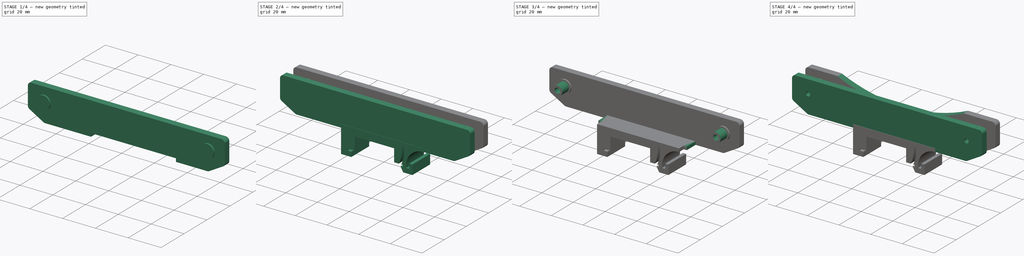
[diagram: build sequence overview — one tinted view per stage of 4, left to right]
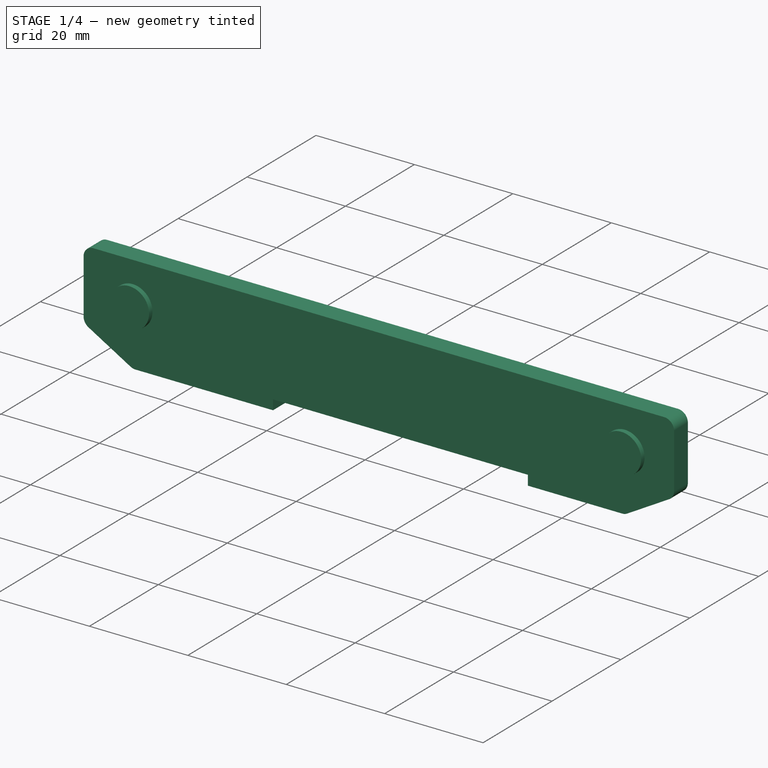
[diagram: stage 1 of 4 — iso view after this stage's code; geometry added in this stage tinted green]
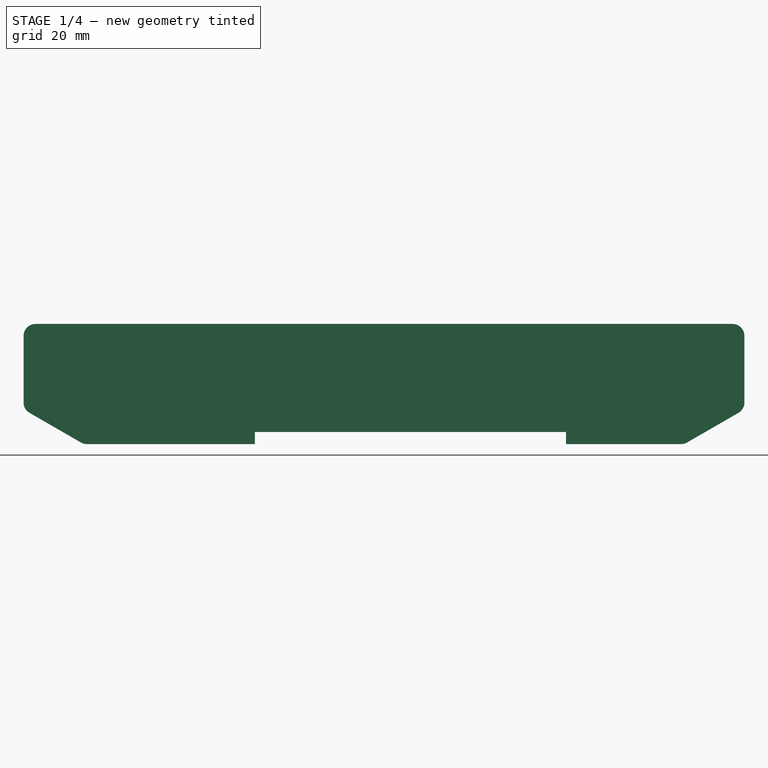
[diagram: stage 1 of 4 — front view after this stage's code; geometry added in this stage tinted green]
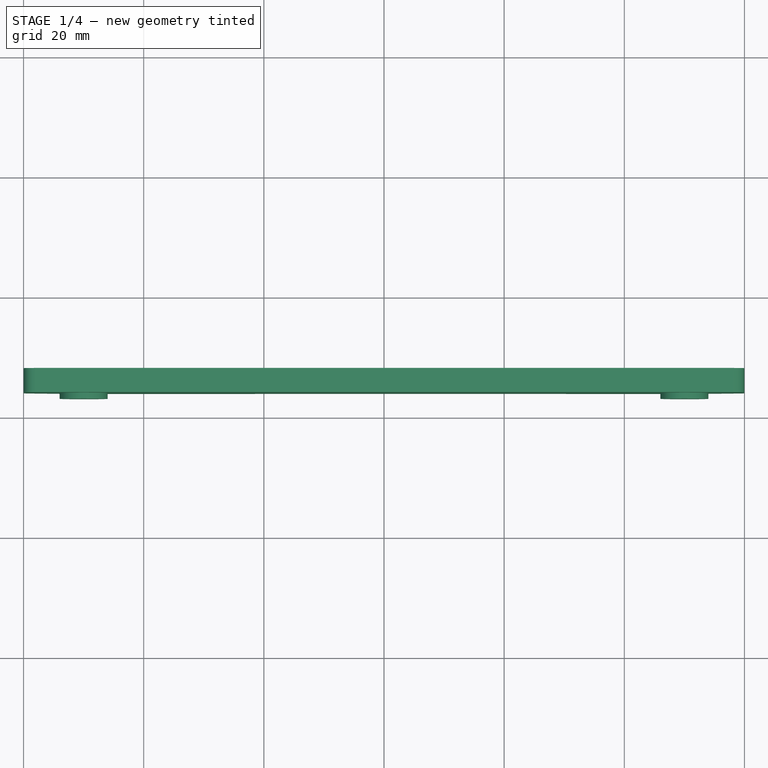
[diagram: stage 1 of 4 — top view after this stage's code; geometry added in this stage tinted green]
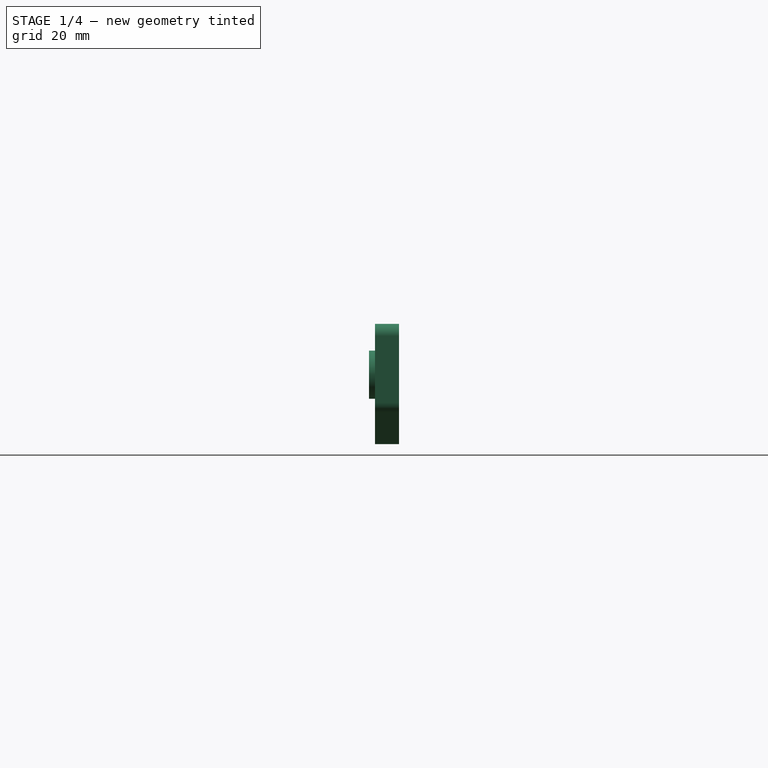
[diagram: stage 1 of 4 — right view after this stage's code; geometry added in this stage tinted green]
FCSTD DOCUMENT  (FreeCAD 0.19R24415 (Git))
Label: DIN-Spool-Holder-v3
License: All rights reserved
LicenseURL: http://en.wikipedia.org/wiki/All_rights_reserved
objects: Sketcher::SketchObject×11, PartDesign::Pad×8, PartDesign::ShapeBinder×4, PartDesign::Body×3, PartDesign::Fillet×2, PartDesign::Hole×2, PartDesign::Plane×1, PartDesign::Boolean×1, PartDesign::Pocket×1
note: 46 computed .brp shape members not serialized (recipe doc carries the construction recipe); baked Part::Feature solids carry a one-line shape summary decoded from their .brp

FEATURE [Sketcher::SketchObject] Sketch003  label="Sketch001"
  FullyConstrained = true
  MapMode = 5
  Placement = pos=(0,0,0) rot=(1,0,0;1.5708rad)
  sketch-geometry (29):
    g0: LineSegment StartX=-21.5 StartY=-3.38e-14 StartZ=0 EndX=-21.5 EndY=-15 EndZ=0
    g1: LineSegment StartX=-21.5 StartY=-15 StartZ=0 EndX=-15 EndY=-15 EndZ=0
    g2: LineSegment StartX=-15 StartY=-15 StartZ=0 EndX=-15 EndY=-12 EndZ=0
    g3: LineSegment StartX=-15 StartY=-12 StartZ=0 EndX=-17.5 EndY=-12 EndZ=0
    g4: LineSegment StartX=-17.5 StartY=-12 StartZ=0 EndX=-17.5 EndY=-10.8 EndZ=0
    g5: LineSegment StartX=-17.5 StartY=-10.8 StartZ=0 EndX=-13 EndY=-10.8 EndZ=0
    g6: LineSegment StartX=-13 StartY=-10.8 StartZ=0 EndX=-13 EndY=-2.8 EndZ=0
    g7: LineSegment StartX=-13 StartY=-2.8 StartZ=0 EndX=12 EndY=-2.8 EndZ=0
    g8: LineSegment StartX=12 StartY=-2.8 StartZ=0 EndX=12 EndY=-10.8 EndZ=0
    g9: LineSegment StartX=12 StartY=-10.8 StartZ=0 EndX=14.826 EndY=-10.8 EndZ=0
    g10: LineSegment StartX=19.5 StartY=-12 StartZ=0 EndX=21.5 EndY=-12 EndZ=0
    g11: LineSegment StartX=21.5 StartY=-12 StartZ=0 EndX=21.5 EndY=-9 EndZ=0
    g12: LineSegment StartX=21.5 StartY=-9 StartZ=0 EndX=23.5 EndY=-9 EndZ=0
    g13: LineSegment StartX=23.5 StartY=-9 StartZ=0 EndX=23.5 EndY=-15 EndZ=0
    g14: LineSegment StartX=23.5 StartY=-15 StartZ=0 EndX=17.7321 EndY=-15 EndZ=0
    g15: LineSegment StartX=17.7321 StartY=-15 StartZ=0 EndX=16 EndY=-12 EndZ=0
    g16: LineSegment StartX=16 StartY=-12 StartZ=0 EndX=17.5 EndY=-12 EndZ=0
    g17: LineSegment StartX=17.5 StartY=-12 StartZ=0 EndX=17.5 EndY=-10.8 EndZ=0
    g18: LineSegment StartX=17.5 StartY=-10.8 StartZ=0 EndX=16.5 EndY=-10.8 EndZ=0
    g19: ArcOfCircle CenterX=-0.5 CenterY=-2.8 CenterZ=0 NormalX=0 NormalY=0 NormalZ=1 AngleXU=0 Radius=17.2883 StartAngle=5.8021 EndAngle=6.36644
    g20: ArcOfCircle CenterX=-0.5 CenterY=-2.8 CenterZ=0 NormalX=0 NormalY=0 NormalZ=1 AngleXU=0 Radius=18.7883 StartAngle=5.84334 EndAngle=6.36644
    g21: ArcOfCircle CenterX=17.4758 CenterY=-1.3 CenterZ=0 NormalX=0 NormalY=0 NormalZ=1 AngleXU=0 Radius=0.75 StartAngle=0.0832526 EndAngle=3.22485
    g22: LineSegment StartX=-21.5 StartY=-3.38e-14 StartZ=0 EndX=30.3 EndY=-3.38e-14 EndZ=0
    g23: LineSegment StartX=19.5 StartY=-12 StartZ=0 EndX=19.5 EndY=-10.8 EndZ=0
    g24: ArcOfCircle CenterX=30.3 CenterY=-10.8 CenterZ=0 NormalX=0 NormalY=0 NormalZ=1 AngleXU=0 Radius=10.8 StartAngle=1.5708 EndAngle=3.14159
    g25: GeomPoint X=0 Y=-10.8 Z=0
    g26: LineSegment StartX=-21.5 StartY=-3.38e-14 StartZ=0 EndX=-21.5 EndY=2 EndZ=0
    g27: LineSegment StartX=-21.5 StartY=2 StartZ=0 EndX=30.3 EndY=2 EndZ=0
    g28: LineSegment StartX=30.3 StartY=2 StartZ=0 EndX=30.3 EndY=-3.38e-14 EndZ=0
  constraints (84):
    c: Vertical(g0)
    c: Coincident(g0,g1)
    c: Horizontal(g1)
    c: Coincident(g1,g2)
    c: Vertical(g2)
    c: Coincident(g2,g3)
    c: Horizontal(g3)
    c: Coincident(g3,g4)
    c: Vertical(g4)
    c: Coincident(g4,g5)
    c: Horizontal(g5)
    c: Coincident(g5,g6)
    c: Vertical(g6)
    c: Coincident(g6,g7)
    c: Horizontal(g7)
    c: Coincident(g7,g8)
    c: Vertical(g8)
    c: Coincident(g8,g9)
    c: Horizontal(g9)
    c: Horizontal(g10)
    c: Coincident(g10,g11)
    c: Vertical(g11)
    c: Coincident(g11,g12)
    c: Horizontal(g12)
    c: Coincident(g12,g13)
    c: Vertical(g13)
    c: Coincident(g13,g14)
    c: Horizontal(g14)
    c: Coincident(g14,g15)
    c: Coincident(g15,g16)
    c: Horizontal(g16)
    c: Coincident(g16,g17)
    c: Vertical(g17)
    c: Coincident(g17,g18)
    c: Horizontal(g18)
    c: DistanceY(g2,g2) = 3
    c: DistanceX(g3,g3) = 2.5
    c: DistanceX(g0,g3) = 4
    c: Horizontal(g9,g18)
    c: DistanceY(g4,g4) = 1.2
    c: DistanceX(g5,g5) = 4.5
    c: DistanceY(g6,g6) = 8
    c: Horizontal(g14,g1)
    c: Horizontal(g15,g2)
    c: Equal(g17,g4)
    c: DistanceX(g12,g12) = 2
    c: DistanceY(g13,g13) = 6
    c: DistanceY(g11,g11) = 3
    c: Coincident(g19,g9)
    c: Coincident(g20,g19)
    c: Coincident(g20,g18)
    c: Tangent(g21,g19) = 1.5708
    c: Tangent(g21,g20) = -1.5708
    c: Radius(g21) = 0.75
    c: Symmetric(g6,g7,g19)
    c: DistanceX(g3,g16) = 35
    c: DistanceX(g18,g18) = 1
    c: DistanceX(g8,g17) = 5.5
    c: DistanceY(g0,g0) = 15
    c: DistanceX(g10,g10) = 2
    c: DistanceX(g16,g10) = 2
    c: DistanceX(g2,g15) = 31
    c: Angle(g15,g16) = 1.0472
    c: Horizontal(g22)
    c: Coincident(g22,g0)
    c: DistanceY(g7,g21) = 1.5
    c: Coincident(g23,g10)
    c: Vertical(g23)
    c: Tangent(g24,g23)
    c: Coincident(g24,g23)
    c: Horizontal(g23,g17)
    c: Symmetric(g4,g17,g25)
    c: Vertical(g25,g-1)
    c: Horizontal(g0,g-1)
    c: Tangent(g24,g22,g24) = 1.5708
    c: Coincident(g22,g24)
    c: Coincident(g0,g26)
    c: Vertical(g26)
    c: Coincident(g26,g27)
    c: Horizontal(g27)
    c: Coincident(g27,g28)
    c: Coincident(g28,g24)
    c: Vertical(g28)
    c: DistanceY(g26,g26) = 2
FEATURE [PartDesign::Pad] Pad  label="clip"
  Direction = (1,1,1)
  Length = 16
  Length2 = 100
  Midplane = true
  Placement = pos=(0,0,0) rot=(1,0,0;1.5708rad)
  Profile = -> Sketch003
  Refine = true
  Type = 0
FEATURE [PartDesign::ShapeBinder] ShapeBinder
  Placement = pos=(0,8,-3e-15) rot=(0,0,1;0rad)
  Support = -> [Pad]
  TraceSupport = false
FEATURE [PartDesign::Plane] DatumPlane
  Length = 60
  MapMode = 5
  Placement = pos=(0,8,-3e-15) rot=(1,0,0;1.5708rad)
  ResizeMode = 0
  Support = -> [ShapeBinder]
  Width = 60
FEATURE [Sketcher::SketchObject] Sketch
  ExternalGeometry = -> [ShapeBinder]
  FullyConstrained = true
  MapMode = 5
  Placement = pos=(0,8,-3e-15) rot=(1,0,0;1.5708rad)
  Support = -> [DatumPlane]
  sketch-geometry (13):
    g0: LineSegment StartX=-21.5 StartY=0 StartZ=0 EndX=-21.5 EndY=2 EndZ=0
    g1: LineSegment StartX=-21.5 StartY=2 StartZ=0 EndX=30.3 EndY=2 EndZ=0
    g2: LineSegment StartX=30.3 StartY=2 StartZ=0 EndX=30.3 EndY=0 EndZ=0
    g3: LineSegment StartX=-21.5 StartY=0 StartZ=0 EndX=-50 EndY=0 EndZ=0
    g4: LineSegment StartX=-50 StartY=0 StartZ=0 EndX=-60 EndY=5.7735 EndZ=0
    g5: LineSegment StartX=-60 StartY=5.7735 StartZ=0 EndX=-60 EndY=20 EndZ=0
    g6: LineSegment StartX=-60 StartY=20 StartZ=0 EndX=60 EndY=20 EndZ=0
    g7: LineSegment StartX=60 StartY=20 StartZ=0 EndX=60 EndY=5.7735 EndZ=0
    g8: LineSegment StartX=60 StartY=5.7735 StartZ=0 EndX=50 EndY=0 EndZ=0
    g9: LineSegment StartX=50 StartY=0 StartZ=0 EndX=30.3 EndY=0 EndZ=0
    g10: LineSegment StartX=-50 StartY=0 StartZ=0 EndX=-50 EndY=20 EndZ=0
    g11: Circle CenterX=0 CenterY=109.527 CenterZ=0 NormalX=0 NormalY=0 NormalZ=1 AngleXU=0 Radius=100
    g12: Circle CenterX=-50 CenterY=11.547 CenterZ=0 NormalX=0 NormalY=0 NormalZ=1 AngleXU=0 Radius=10
  constraints (34):
    c: Coincident(g0,g-4)
    c: Coincident(g0,g1)
    c: Coincident(g1,g-5)
    c: Coincident(g1,g2)
    c: Coincident(g2,g-5)
    c: PointOnObject(g0,g-3)
    c: PointOnObject(g0,g-1)
    c: Coincident(g0,g3)
    c: Horizontal(g3)
    c: Coincident(g3,g4)
    c: Coincident(g4,g5)
    c: Vertical(g5)
    c: Coincident(g5,g6)
    c: Coincident(g6,g7)
    c: Coincident(g7,g8)
    c: Coincident(g8,g9)
    c: Coincident(g9,g2)
    c: Symmetric(g6,g5,g-2)
    c: Symmetric(g4,g7,g-2)
    c: Symmetric(g3,g8,g-2)
    c: Coincident(g10,g3)
    c: PointOnObject(g10,g6)
    c: Vertical(g10)
    c: Angle(g10,g4) = 1.0472
    c: DistanceY(g8,g6) = 20
    c: DistanceX(g6,g6) = 120
    c: PointOnObject(g11,g-2)
    c: Diameter(g11) = 200
    c: PointOnObject(g12,g10)
    c: Diameter(g12) = 20
    c: Tangent(g12,g4)
    c: Tangent(g12,g5)
    c: DistanceX(g3,g8) = 100
    c: Tangent(g11,g12)
FEATURE [PartDesign::Pad] Pad001  label="base-profile"
  Direction = (1,1,1)
  Length = 4
  Length2 = 100
  Placement = pos=(0,8,-3e-15) rot=(1,0,0;1.5708rad)
  Profile = -> Sketch
  Refine = true
  Type = 0
FEATURE [Sketcher::SketchObject] Sketch004
  ExternalGeometry = -> [ShapeBinder]
  FullyConstrained = true
  MapMode = 5
  Placement = pos=(0,4,-2.3e-15) rot=(1,0,0;1.5708rad)
  Support = -> [Pad001]
  expr: Constraints[23] = Sketch.Constraints[23]
  expr: Constraints[24] = Sketch.Constraints[24]
  expr: Constraints[25] = Sketch.Constraints[25]
  expr: Constraints[27] = Sketch.Constraints[27]
  expr: Constraints[29] = Sketch.Constraints[29]
  sketch-geometry (15):
    g0: LineSegment StartX=-21.5 StartY=0 StartZ=0 EndX=-21.5 EndY=2 EndZ=0
    g1: LineSegment StartX=-21.5 StartY=2 StartZ=0 EndX=30.3 EndY=2 EndZ=0
    g2: LineSegment StartX=30.3 StartY=2 StartZ=0 EndX=30.3 EndY=0 EndZ=0
    g3: LineSegment StartX=-21.5 StartY=0 StartZ=0 EndX=-50 EndY=0 EndZ=0
    g4: LineSegment StartX=-50 StartY=0 StartZ=0 EndX=-60 EndY=5.7735 EndZ=0
    g5: LineSegment StartX=-60 StartY=5.7735 StartZ=0 EndX=-60 EndY=20 EndZ=0
    g6: LineSegment StartX=-60 StartY=20 StartZ=0 EndX=60 EndY=20 EndZ=0
    g7: LineSegment StartX=60 StartY=20 StartZ=0 EndX=60 EndY=5.7735 EndZ=0
    g8: LineSegment StartX=60 StartY=5.7735 StartZ=0 EndX=50 EndY=0 EndZ=0
    g9: LineSegment StartX=50 StartY=0 StartZ=0 EndX=30.3 EndY=0 EndZ=0
    g10: LineSegment StartX=-50 StartY=0 StartZ=0 EndX=-50 EndY=20 EndZ=0
    g11: Circle CenterX=0 CenterY=109.527 CenterZ=0 NormalX=0 NormalY=0 NormalZ=1 AngleXU=0 Radius=100
    g12: Circle CenterX=-50 CenterY=11.547 CenterZ=0 NormalX=0 NormalY=0 NormalZ=1 AngleXU=0 Radius=10
    g13: Circle CenterX=-50 CenterY=11.547 CenterZ=0 NormalX=0 NormalY=0 NormalZ=1 AngleXU=0 Radius=4
    g14: Circle CenterX=50 CenterY=11.547 CenterZ=0 NormalX=0 NormalY=0 NormalZ=1 AngleXU=0 Radius=4
  constraints (38):
    c: Coincident(g0,g-4)
    c: Coincident(g0,g1)
    c: Coincident(g1,g-5)
    c: Coincident(g1,g2)
    c: Coincident(g2,g-5)
    c: PointOnObject(g0,g-3)
    c: PointOnObject(g0,g-1)
    c: Coincident(g0,g3)
    c: Horizontal(g3)
    c: Coincident(g3,g4)
    c: Coincident(g4,g5)
    c: Vertical(g5)
    c: Coincident(g5,g6)
    c: Coincident(g6,g7)
    c: Coincident(g7,g8)
    c: Coincident(g8,g9)
    c: Coincident(g9,g2)
    c: Symmetric(g6,g5,g-2)
    c: Symmetric(g4,g7,g-2)
    c: Symmetric(g3,g8,g-2)
    c: Coincident(g10,g3)
    c: PointOnObject(g10,g6)
    c: Vertical(g10)
    c: Angle(g10,g4) = 1.0472
    c: DistanceY(g8,g6) = 20
    c: DistanceX(g6,g6) = 120
    c: PointOnObject(g11,g-2)
    c: Diameter(g11) = 200
    c: PointOnObject(g12,g10)
    c: Diameter(g12) = 20
    c: Tangent(g12,g4)
    c: Tangent(g12,g5)
    c: DistanceX(g3,g8) = 100
    c: Tangent(g11,g12)
    c: Coincident(g13,g12)
    c: Diameter(g13) = 8
    c: Equal(g14,g13)
    c: Symmetric(g13,g14,g-2)
FEATURE [PartDesign::Pad] Pad002  label="base-pads"
  BaseFeature = -> Pad001
  Direction = (1,1,1)
  Length = 1
  Length2 = 100
  Placement = pos=(0,8,-3e-15) rot=(1,0,0;1.5708rad)
  Profile = -> Sketch004
  Refine = true
  Type = 0
FEATURE [PartDesign::Fillet] Fillet
  Base = -> Pad002 [Edge5,Edge27,Edge32,Edge31,Edge30,Edge29]
  BaseFeature = -> Pad002
  Placement = pos=(0,8,-3e-15) rot=(1,0,0;1.5708rad)
  Radius = 2
  Refine = true
  SupportTransform = false
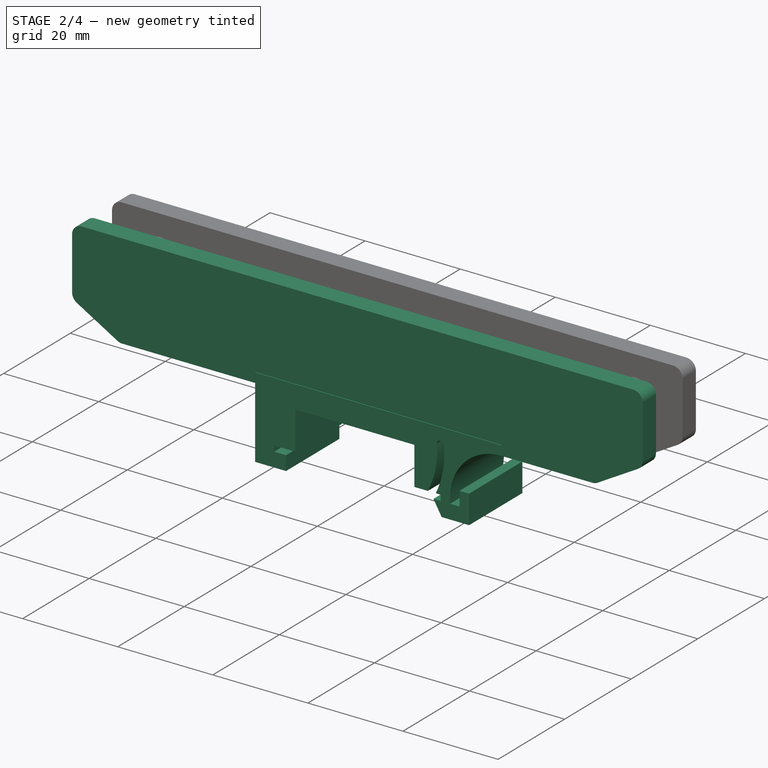
[diagram: stage 2 of 4 — iso view after this stage's code; geometry added in this stage tinted green]
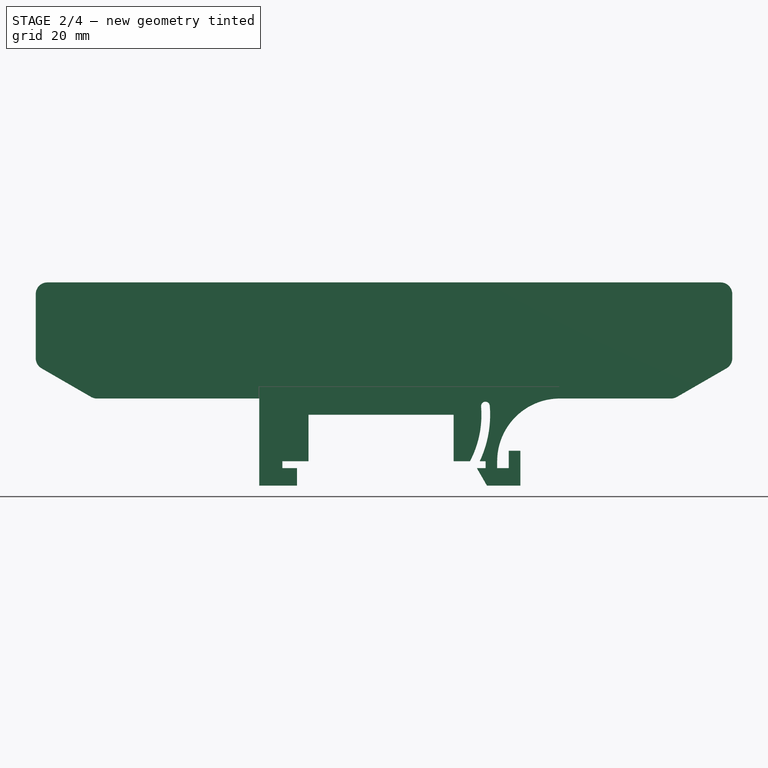
[diagram: stage 2 of 4 — front view after this stage's code; geometry added in this stage tinted green]
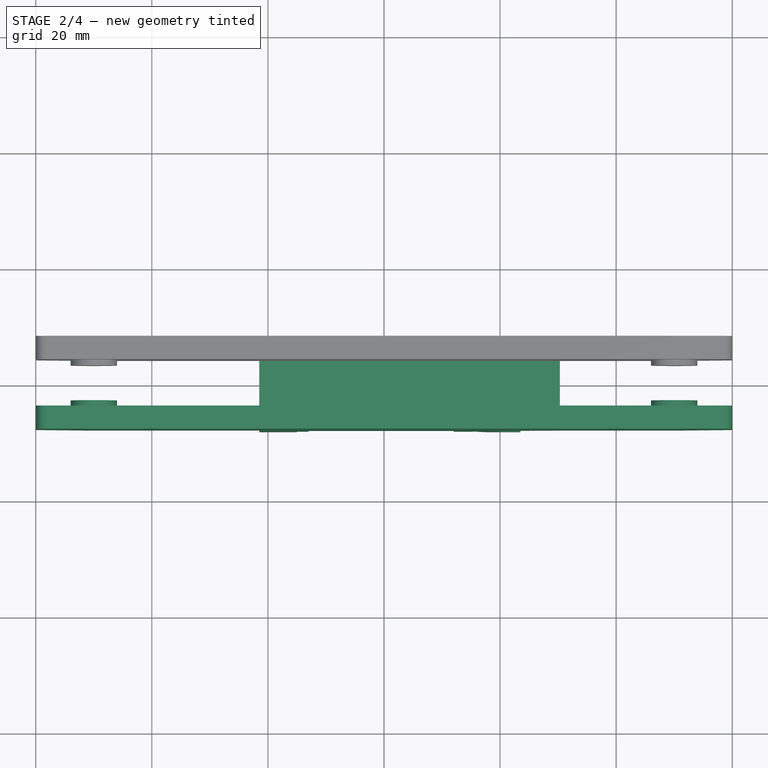
[diagram: stage 2 of 4 — top view after this stage's code; geometry added in this stage tinted green]
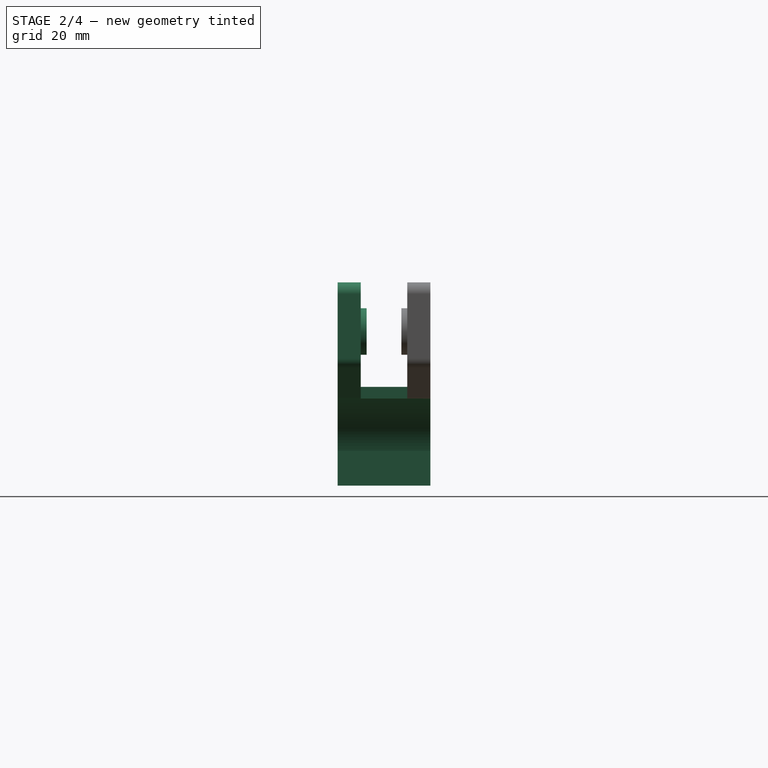
[diagram: stage 2 of 4 — right view after this stage's code; geometry added in this stage tinted green]
FEATURE [PartDesign::Body] Body001  label="base"
  Group = -> [ShapeBinder,DatumPlane,Sketch,Pad001,Sketch004,Pad002,Fillet]
  Origin = -> Origin001
  Tip = -> Fillet
FEATURE [PartDesign::ShapeBinder] ShapeBinder001
  Placement = pos=(0,-8,3e-15) rot=(0,0,1;0rad)
  Support = -> [Pad]
  TraceSupport = false
FEATURE [PartDesign::ShapeBinder] ShapeBinder002
  Support = -> [Fillet]
  TraceSupport = false
FEATURE [Sketcher::SketchObject] Sketch005
  ExternalGeometry = -> [ShapeBinder002]
  FullyConstrained = true
  MapMode = 5
  Placement = pos=(0,-8,3e-15) rot=(1,0,0;1.5708rad)
  Support = -> [ShapeBinder001]
  sketch-geometry (19):
    g0: LineSegment StartX=-49.4641 StartY=9e-16 StartZ=0 EndX=-21.6 EndY=9e-16 EndZ=0
    g1: LineSegment StartX=30.2 StartY=-1.8e-15 StartZ=0 EndX=49.4641 EndY=-1.8e-15 EndZ=0
    g2: LineSegment StartX=60 StartY=6.9282 StartZ=0 EndX=60 EndY=18 EndZ=0
    g3: LineSegment StartX=-60 StartY=6.9282 StartZ=0 EndX=-60 EndY=18 EndZ=0
    g4: LineSegment StartX=-50.4641 StartY=0.267949 StartZ=0 EndX=-59 EndY=5.19615 EndZ=0
    g5: LineSegment StartX=50.4641 StartY=0.267949 StartZ=0 EndX=59 EndY=5.19615 EndZ=0
    g6: LineSegment StartX=-58 StartY=20 StartZ=0 EndX=58 EndY=20 EndZ=0
    g7: ArcOfCircle CenterX=-58 CenterY=18 CenterZ=0 NormalX=0 NormalY=0 NormalZ=1 AngleXU=0 Radius=2 StartAngle=1.5708 EndAngle=3.14159
    g8: ArcOfCircle CenterX=-58 CenterY=6.9282 CenterZ=0 NormalX=0 NormalY=0 NormalZ=1 AngleXU=0 Radius=2 StartAngle=3.14159 EndAngle=4.18879
    g9: ArcOfCircle CenterX=58 CenterY=18 CenterZ=0 NormalX=0 NormalY=0 NormalZ=1 AngleXU=0 Radius=2 StartAngle=0 EndAngle=1.5708
    g10: ArcOfCircle CenterX=58 CenterY=6.9282 CenterZ=0 NormalX=0 NormalY=0 NormalZ=1 AngleXU=0 Radius=2 StartAngle=5.23599 EndAngle=6.28319
    g11: ArcOfCircle CenterX=49.4641 CenterY=2 CenterZ=0 NormalX=0 NormalY=0 NormalZ=1 AngleXU=0 Radius=2 StartAngle=4.71239 EndAngle=5.23599
    g12: ArcOfCircle CenterX=-49.4641 CenterY=2 CenterZ=0 NormalX=0 NormalY=0 NormalZ=1 AngleXU=0 Radius=2 StartAngle=4.18879 EndAngle=4.71239
    g13: LineSegment StartX=-21.6 StartY=9e-16 StartZ=0 EndX=-21.5 EndY=9e-16 EndZ=0
    g14: LineSegment StartX=30.3 StartY=9e-16 StartZ=0 EndX=30.2 EndY=-1.8e-15 EndZ=0
    g15: LineSegment StartX=30.2 StartY=-1.8e-15 StartZ=0 EndX=30.2 EndY=2.1 EndZ=0
    g16: LineSegment StartX=30.2 StartY=2.1 StartZ=0 EndX=-21.6 EndY=2.1 EndZ=0
    g17: LineSegment StartX=-21.6 StartY=2.1 StartZ=0 EndX=-21.6 EndY=9e-16 EndZ=0
    g18: LineSegment StartX=-21.5 StartY=2 StartZ=0 EndX=-21.5 EndY=2.1 EndZ=0
  constraints (49):
    c: Coincident(g-9,g0)
    c: Coincident(g1,g-14)
    c: Coincident(g-17,g2)
    c: Coincident(g2,g-18)
    c: Coincident(g3,g-6)
    c: Coincident(g3,g-4)
    c: Coincident(g4,g-8)
    c: Coincident(g4,g-7)
    c: Coincident(g5,g-15)
    c: Coincident(g5,g-16)
    c: Coincident(g6,g-5)
    c: Coincident(g6,g-18)
    c: Coincident(g7,g-4)
    c: Coincident(g7,g6)
    c: Coincident(g7,g3)
    c: Coincident(g8,g-6)
    c: Coincident(g8,g3)
    c: Coincident(g8,g4)
    c: Coincident(g9,g-18)
    c: Coincident(g9,g6)
    c: Coincident(g9,g2)
    c: Coincident(g10,g-16)
    c: Coincident(g10,g2)
    c: Coincident(g10,g5)
    c: Coincident(g11,g-14)
    c: Coincident(g11,g5)
    c: Coincident(g11,g1)
    c: Coincident(g12,g-8)
    c: Coincident(g12,g4)
    c: Coincident(g12,g0)
    c: Horizontal(g1)
    c: Horizontal(g0)
    c: Coincident(g13,g0)
    c: Coincident(g13,g-10)
    c: Coincident(g14,g-13)
    c: Coincident(g14,g1)
    c: Equal(g14,g13)
    c: Coincident(g15,g16)
    c: Coincident(g16,g17)
    c: Horizontal(g16)
    c: Vertical(g15)
    c: Vertical(g17)
    c: Coincident(g15,g1)
    c: Coincident(g18,g-11)
    c: PointOnObject(g18,g16)
    c: Vertical(g18)
    c: Equal(g18,g13)
    c: Coincident(g17,g0)
    c: DistanceX(g13,g13) = 0.1
FEATURE [PartDesign::Boolean] Boolean
  BaseFeature = -> Pad
  Group = -> [Body001]
  Refine = true
  Type = 0
FEATURE [PartDesign::Pad] Pad003
  Direction = (1,1,1)
  Length = 4
  Length2 = 100
  Placement = pos=(0,-8,3e-15) rot=(0,0,1;0rad)
  Profile = -> Sketch005
  Refine = true
  Reversed = true
  Type = 0
  expr: Length = <<base-profile>>.Length
FEATURE [Sketcher::SketchObject] Sketch006
  ExternalGeometry = -> [ShapeBinder002]
  FullyConstrained = true
  MapMode = 5
  Placement = pos=(0,-4,2.1e-15) rot=(0,0.707107,0.707107;3.14159rad)
  Support = -> [Pad003]
  sketch-geometry (2):
    g0: Circle CenterX=-50 CenterY=11.547 CenterZ=0 NormalX=0 NormalY=0 NormalZ=1 AngleXU=0 Radius=4
    g1: Circle CenterX=50 CenterY=11.547 CenterZ=0 NormalX=0 NormalY=0 NormalZ=1 AngleXU=0 Radius=4
  constraints (4):
    c: Coincident(g0,g-4)
    c: Coincident(g1,g-3)
    c: Equal(g1,g-3)
    c: Equal(g0,g-4)
FEATURE [PartDesign::Pad] Pad004
  BaseFeature = -> Pad003
  Direction = (1,1,1)
  Length = 1
  Length2 = 100
  Placement = pos=(0,-8,3e-15) rot=(0,0,1;0rad)
  Profile = -> Sketch006
  Refine = true
  Type = 0
  expr: Length = <<base-pads>>.Length
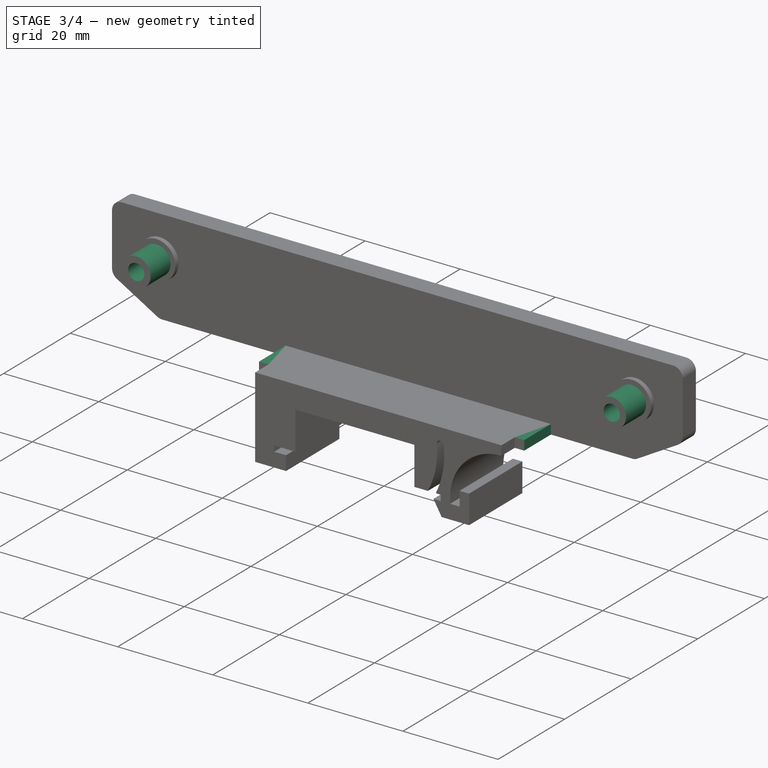
[diagram: stage 3 of 4 — iso view after this stage's code; geometry added in this stage tinted green]
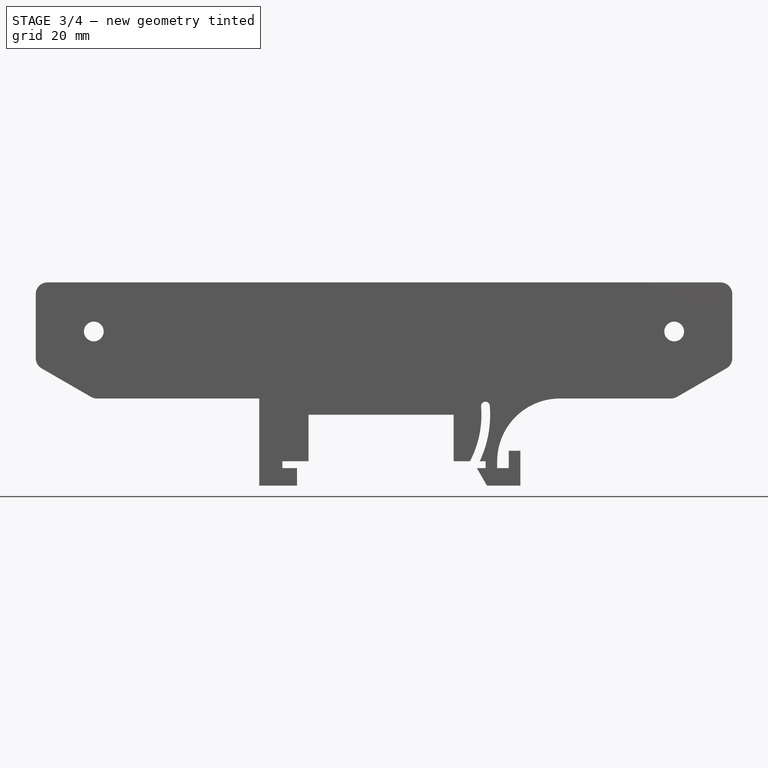
[diagram: stage 3 of 4 — front view after this stage's code; geometry added in this stage tinted green]
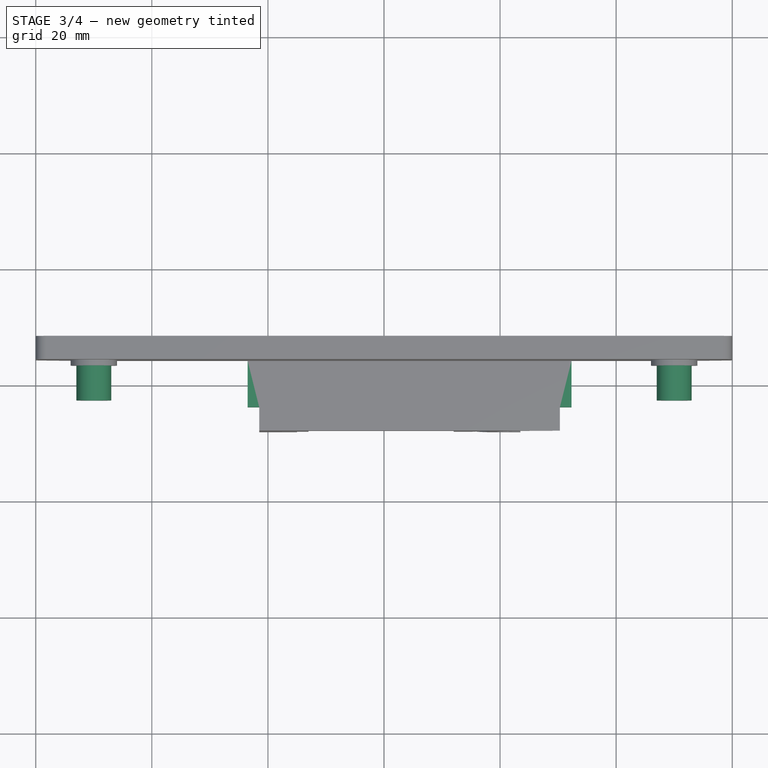
[diagram: stage 3 of 4 — top view after this stage's code; geometry added in this stage tinted green]
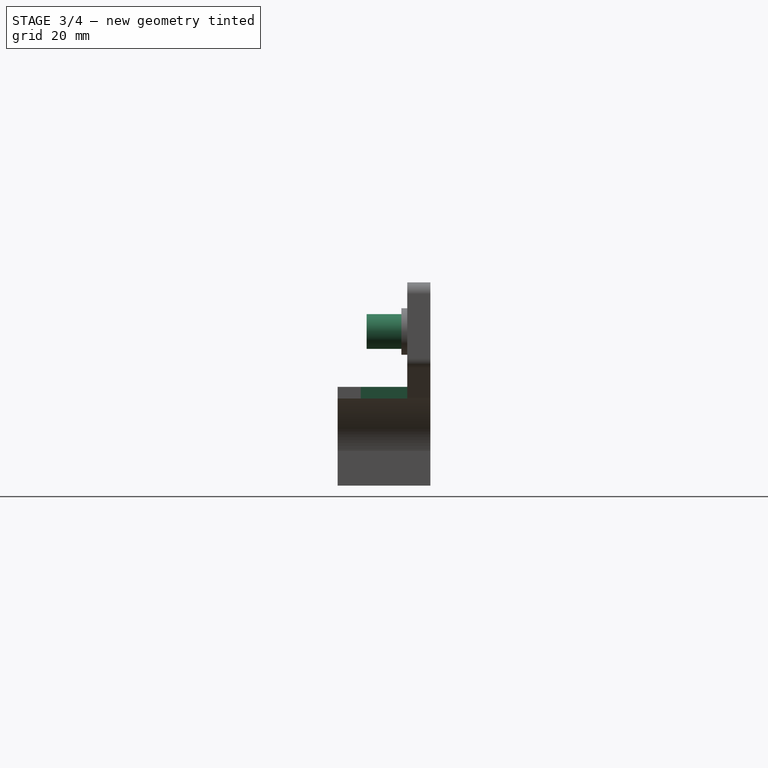
[diagram: stage 3 of 4 — right view after this stage's code; geometry added in this stage tinted green]
FEATURE [Sketcher::SketchObject] Sketch007
  ExternalGeometry = -> [Boolean]
  FullyConstrained = true
  MapMode = 5
  Placement = pos=(0,3,-1.4e-15) rot=(1,0,0;1.5708rad)
  Support = -> [Boolean]
  sketch-geometry (2):
    g0: Circle CenterX=-50 CenterY=11.547 CenterZ=0 NormalX=0 NormalY=0 NormalZ=1 AngleXU=0 Radius=3
    g1: Circle CenterX=50 CenterY=11.547 CenterZ=0 NormalX=0 NormalY=0 NormalZ=1 AngleXU=0 Radius=3
  constraints (4):
    c: Coincident(g0,g-3)
    c: Diameter(g0) = 6
    c: Diameter(g1) = 6
    c: Coincident(g1,g-4)
FEATURE [PartDesign::ShapeBinder] ShapeBinder003
  Placement = pos=(0,1,-2e-16) rot=(0,0,1;0rad)
  Support = -> [Pad004]
  TraceSupport = false
FEATURE [PartDesign::Pad] Pad005
  BaseFeature = -> Boolean
  Direction = (1,1,1)
  Length = 10
  Length2 = 100
  Profile = -> Sketch007
  Refine = true
  Type = 3
  UpToFace = -> Pad004 [Face22]
FEATURE [Sketcher::SketchObject] Sketch008
  ExternalGeometry = -> [Pad005]
  FullyConstrained = true
  MapMode = 5
  Placement = pos=(0,8,-2.1e-15) rot=(0,0.707107,0.707107;3.14159rad)
  Support = -> [Pad005]
  sketch-geometry (2):
    g0: Circle CenterX=-50 CenterY=11.547 CenterZ=0 NormalX=0 NormalY=0 NormalZ=1 AngleXU=0 Radius=1.6
    g1: Circle CenterX=50 CenterY=11.547 CenterZ=0 NormalX=0 NormalY=0 NormalZ=1 AngleXU=0 Radius=1.6
  constraints (4):
    c: Coincident(g0,g-3)
    c: Coincident(g1,g-4)
    c: Equal(g1,g0)
    c: Diameter(g0) = 3.2
FEATURE [PartDesign::Hole] Hole  label="M3-holes"
  BaseFeature = -> Pad005
  Depth = 25
  DepthType = 0
  Diameter = 3.4
  DrillForDepth = false
  DrillPoint = 1
  DrillPointAngle = 118
  HoleCutCountersinkAngle = 90
  HoleCutCustomValues = false
  HoleCutDepth = 3.4
  HoleCutDiameter = 6.3
  HoleCutType = 1
  ModelActualThread = false
  Profile = -> Sketch008
  Refine = true
  Tapered = false
  TaperedAngle = 90
  ThreadAngle = 0
  ThreadClass = 0
  ThreadCutOffInner = 0
  ThreadCutOffOuter = 0
  ThreadDirection = 0
  ThreadFit = 0
  ThreadPitch = 0
  ThreadSize = 9
  ThreadType = 1
  Threaded = false
FEATURE [PartDesign::Body] Body002  label="retainer"
  Group = -> [ShapeBinder001,ShapeBinder002,Sketch005,Pad003,Sketch006,Pad004,Sketch010,Hole001]
  Origin = -> Origin002
  Tip = -> Hole001
FEATURE [Sketcher::SketchObject] Sketch012
  ExternalGeometry = -> [Hole]
  FullyConstrained = true
  MapMode = 5
  Placement = pos=(0,4,-1.6e-15) rot=(1,0,0;1.5708rad)
  Support = -> [Hole]
  sketch-geometry (8):
    g0: LineSegment StartX=-21.5 StartY=9e-16 StartZ=0 EndX=-23.5 EndY=9e-16 EndZ=0
    g1: LineSegment StartX=-23.5 StartY=9e-16 StartZ=0 EndX=-23.5 EndY=2 EndZ=0
    g2: LineSegment StartX=-23.5 StartY=2 StartZ=0 EndX=-21.5 EndY=2 EndZ=0
    g3: LineSegment StartX=-21.5 StartY=2 StartZ=0 EndX=-21.5 EndY=9e-16 EndZ=0
    g4: LineSegment StartX=30.3 StartY=-9e-16 StartZ=0 EndX=32.3 EndY=-9e-16 EndZ=0
    g5: LineSegment StartX=32.3 StartY=-9e-16 StartZ=0 EndX=32.3 EndY=2 EndZ=0
    g6: LineSegment StartX=32.3 StartY=2 StartZ=0 EndX=30.3 EndY=2 EndZ=0
    g7: LineSegment StartX=30.3 StartY=2 StartZ=0 EndX=30.3 EndY=-9e-16 EndZ=0
  constraints (20):
    c: Coincident(g0,g1)
    c: Coincident(g1,g2)
    c: Coincident(g2,g3)
    c: Coincident(g3,g0)
    c: Horizontal(g0)
    c: Horizontal(g2)
    c: Vertical(g1)
    c: Coincident(g0,g-3)
    c: Coincident(g2,g-4)
    c: Equal(g3,g0)
    c: Coincident(g4,g5)
    c: Coincident(g5,g6)
    c: Coincident(g6,g7)
    c: Coincident(g7,g4)
    c: Horizontal(g4)
    c: Horizontal(g6)
    c: Vertical(g5)
    c: Coincident(g4,g-5)
    c: Coincident(g6,g-5)
    c: Equal(g4,g7)
FEATURE [PartDesign::Pad] Pad007
  BaseFeature = -> Hole
  Direction = (1,1,1)
  Length = 8
  Length2 = 100
  Profile = -> Sketch012
  Refine = true
  Type = 0
  expr: Length = <<clip>>.Length - 2 * <<base-profile>>.Length
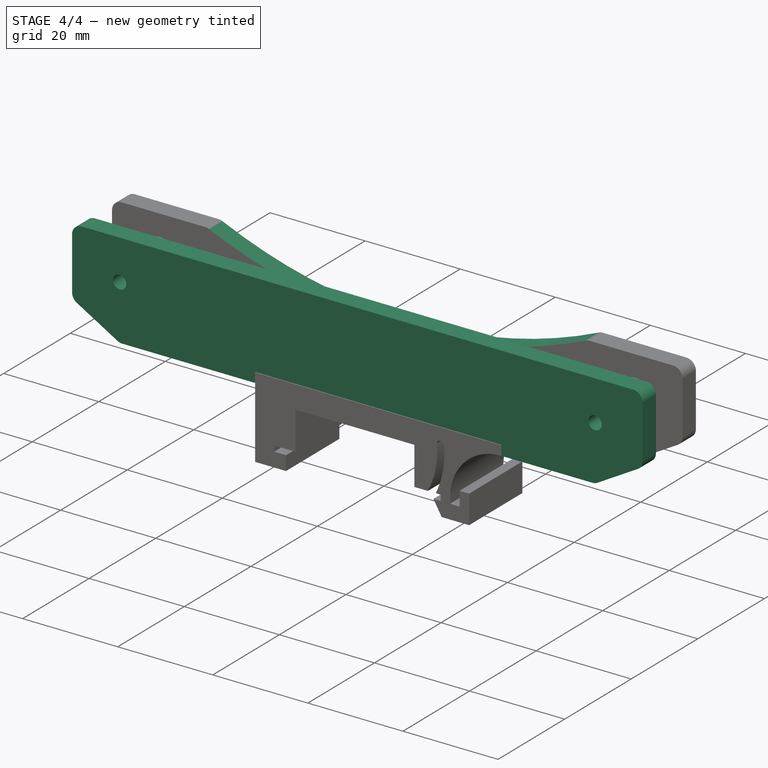
[diagram: stage 4 of 4 — iso view after this stage's code; geometry added in this stage tinted green]
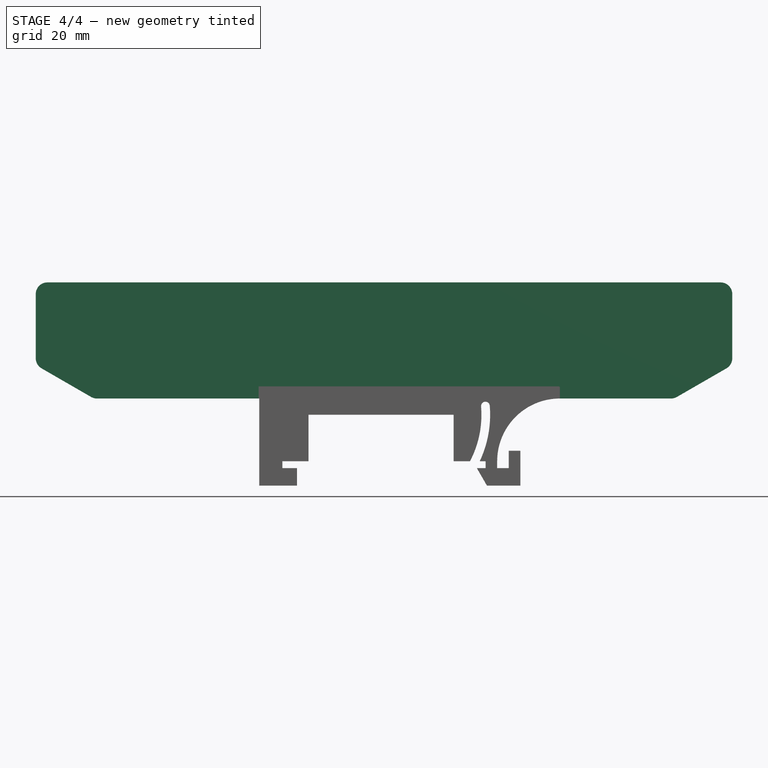
[diagram: stage 4 of 4 — front view after this stage's code; geometry added in this stage tinted green]
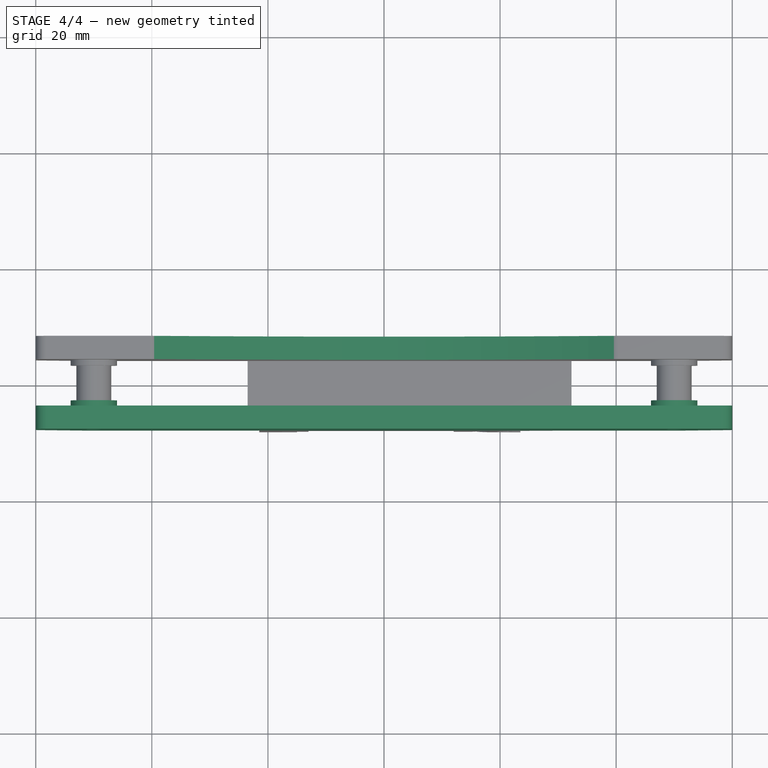
[diagram: stage 4 of 4 — top view after this stage's code; geometry added in this stage tinted green]
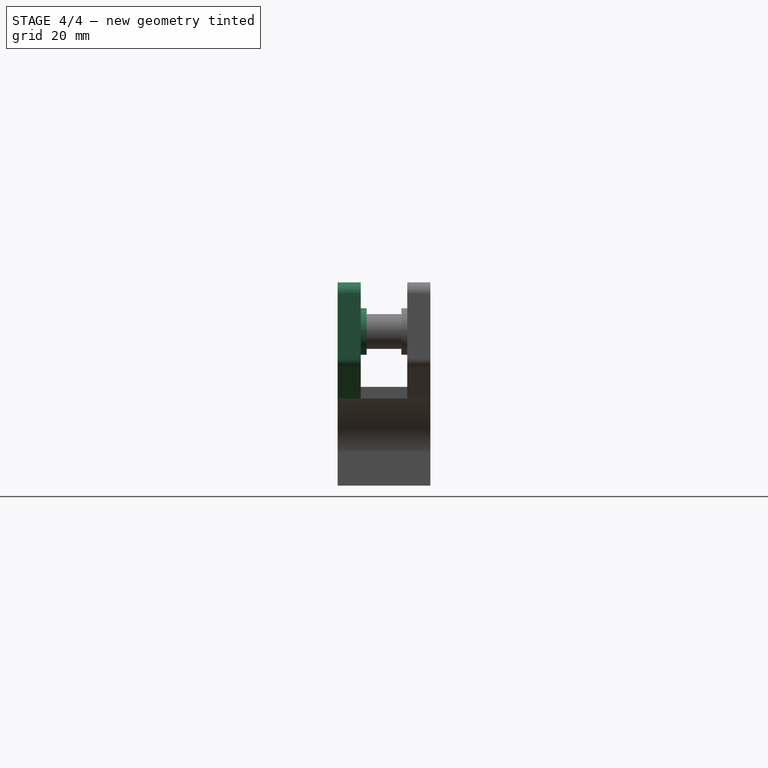
[diagram: stage 4 of 4 — right view after this stage's code; geometry added in this stage tinted green]
FEATURE [Sketcher::SketchObject] Sketch010
  ExternalGeometry = -> [Pad004]
  FullyConstrained = true
  MapMode = 5
  Placement = pos=(0,-8,3e-15) rot=(1,0,0;1.5708rad)
  Support = -> [Pad004]
  sketch-geometry (2):
    g0: Circle CenterX=-50 CenterY=11.547 CenterZ=0 NormalX=0 NormalY=0 NormalZ=1 AngleXU=0 Radius=1.6
    g1: Circle CenterX=50 CenterY=11.547 CenterZ=0 NormalX=0 NormalY=0 NormalZ=1 AngleXU=0 Radius=1.6
  constraints (4):
    c: Coincident(g0,g-4)
    c: Coincident(g1,g-3)
    c: Equal(g1,g0)
    c: Diameter(g0) = 3.2
FEATURE [PartDesign::Hole] Hole001
  BaseFeature = -> Pad004
  Depth = 25
  DepthType = 1
  Diameter = 2.8
  DrillForDepth = false
  DrillPoint = 1
  DrillPointAngle = 118
  HoleCutCountersinkAngle = 90
  HoleCutCustomValues = false
  HoleCutDepth = 0
  HoleCutDiameter = 4.1
  HoleCutType = 0
  ModelActualThread = false
  Placement = pos=(0,-8,3e-15) rot=(0,0,1;0rad)
  Profile = -> Sketch010
  Refine = true
  Tapered = false
  TaperedAngle = 90
  ThreadAngle = 0
  ThreadClass = 0
  ThreadCutOffInner = 0
  ThreadCutOffOuter = 0
  ThreadDirection = 0
  ThreadFit = 0
  ThreadPitch = 0
  ThreadSize = 0
  ThreadType = 0
  Threaded = false
FEATURE [Sketcher::SketchObject] Sketch013
  ExternalGeometry = -> [Pad007]
  FullyConstrained = true
  MapMode = 5
  Placement = pos=(0,8,-2.1e-15) rot=(0,0.707107,0.707107;3.14159rad)
  Support = -> [Pad007]
  sketch-geometry (5):
    g0: ArcOfCircle CenterX=0 CenterY=109.527 CenterZ=0 NormalX=0 NormalY=0 NormalZ=1 AngleXU=0 Radius=98.0562 StartAngle=4.2922 EndAngle=5.13257
    g1: LineSegment StartX=-40 StartY=20 StartZ=0 EndX=40 EndY=20 EndZ=0
    g2: Circle CenterX=-50 CenterY=11.547 CenterZ=0 NormalX=0 NormalY=0 NormalZ=1 AngleXU=0 Radius=10
    g3: Circle CenterX=50 CenterY=11.547 CenterZ=0 NormalX=0 NormalY=0 NormalZ=1 AngleXU=0 Radius=10
    g4: Circle CenterX=0 CenterY=109.527 CenterZ=0 NormalX=0 NormalY=0 NormalZ=1 AngleXU=0 Radius=100
  constraints (14):
    c: PointOnObject(g0,g-2)
    c: PointOnObject(g0,g-3)
    c: PointOnObject(g0,g-3)
    c: Coincident(g1,g0)
    c: Coincident(g1,g0)
    c: Coincident(g2,g-4)
    c: Coincident(g3,g-5)
    c: Diameter(g2) = 20
    c: Equal(g2,g3)
    c: Diameter(g4) = 200
    c: Coincident(g0,g4)
    c: Tangent(g3,g4)
    c: Radius(g0) = 98.0562
    c: DistanceX(g1,g1) = 80
FEATURE [PartDesign::Pocket] Pocket
  BaseFeature = -> Pad007
  Length = 5
  Length2 = 100
  Profile = -> Sketch013
  Refine = true
  Type = 1
FEATURE [PartDesign::Fillet] Fillet001
  Base = -> Pocket [Edge122,Edge123]
  BaseFeature = -> Pocket
  Radius = 2
  Refine = true
  SupportTransform = false
  expr: Radius = Fillet.Radius
FEATURE [Sketcher::SketchObject] Sketch014
  ExternalGeometry = -> [Fillet001]
  FullyConstrained = true
  MapMode = 5
  Placement = pos=(0,4.6,-1e-15) rot=(0,0.707107,0.707107;3.14159rad)
  Support = -> [Fillet001]
  sketch-geometry (2):
    g0: Circle CenterX=-50 CenterY=11.547 CenterZ=0 NormalX=0 NormalY=0 NormalZ=1 AngleXU=0 Radius=1.7
    g1: Circle CenterX=50 CenterY=11.547 CenterZ=0 NormalX=0 NormalY=0 NormalZ=1 AngleXU=0 Radius=1.7
  constraints (4):
    c: Coincident(g0,g-4)
    c: Coincident(g1,g-3)
    c: Equal(g1,g-3)
    c: Equal(g0,g-4)
FEATURE [PartDesign::Pad] Pad008
  BaseFeature = -> Fillet001
  Direction = (1,1,1)
  Length = 0.3
  Length2 = 100
  Profile = -> Sketch014
  Refine = true
  Reversed = true
  Type = 0
FEATURE [PartDesign::Body] Body  label="clip-and-base"
  Group = -> [Sketch003,Pad,Boolean,ShapeBinder003,Sketch007,Pad005,Sketch008,Hole,Sketch012,Pad007,Sketch013,Pocket,Fillet001,Sketch014,Pad008]
  Origin = -> Origin
  Tip = -> Pad008
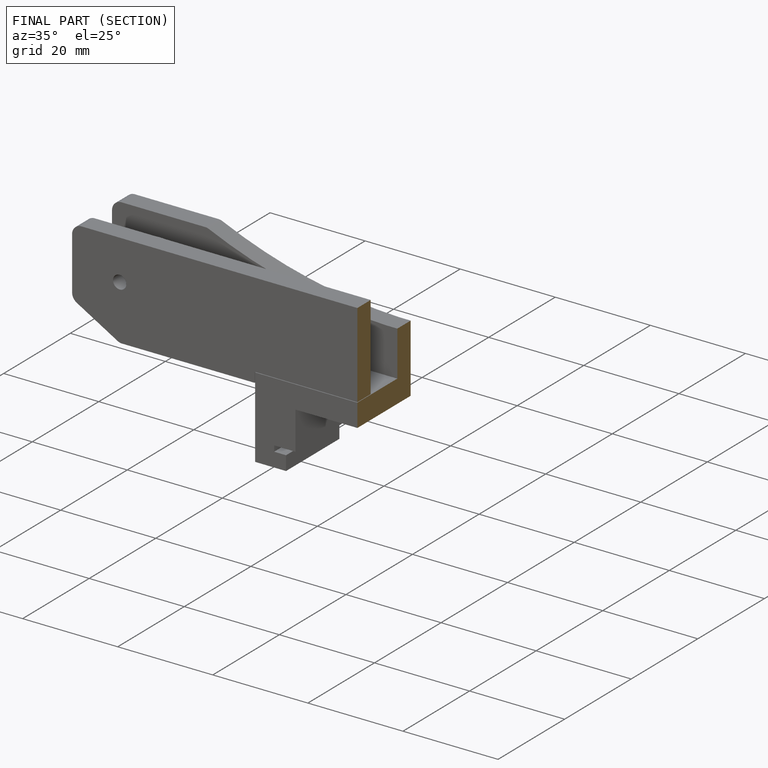
[diagram: finished part — half-section view (interior)]
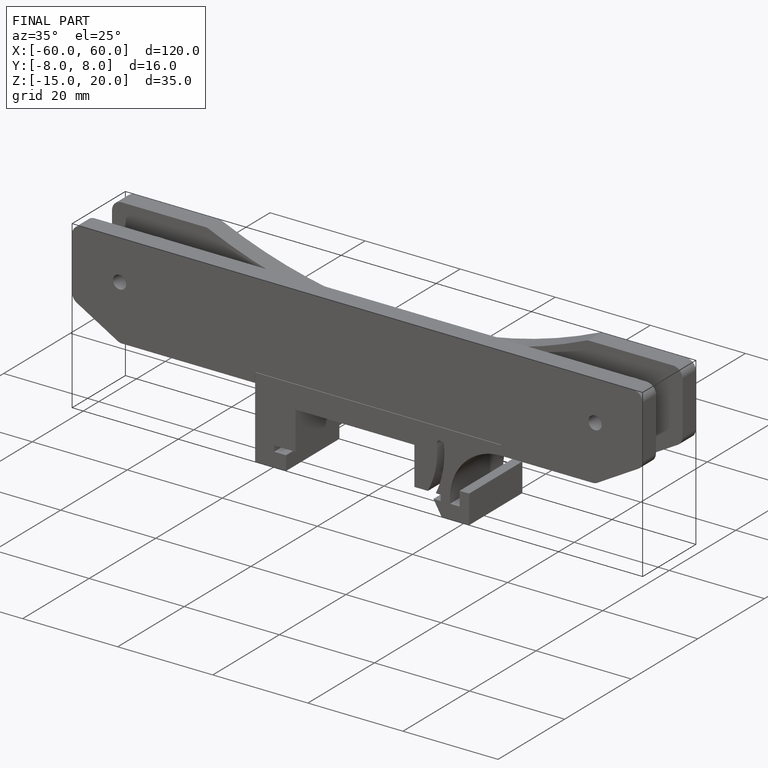
[diagram: finished part — iso view with bounding-box wireframe]
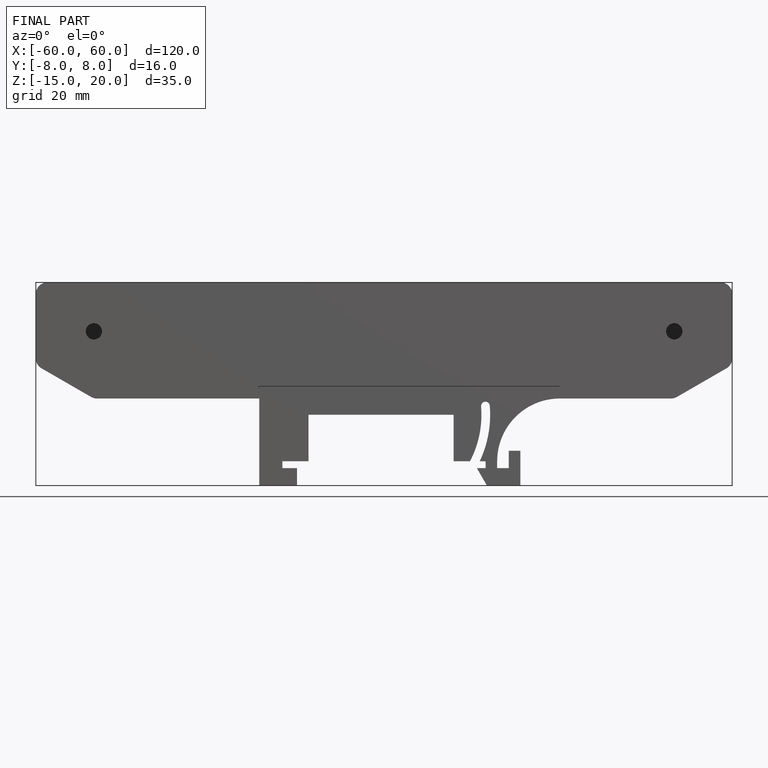
[diagram: finished part — front view with bounding-box wireframe]
